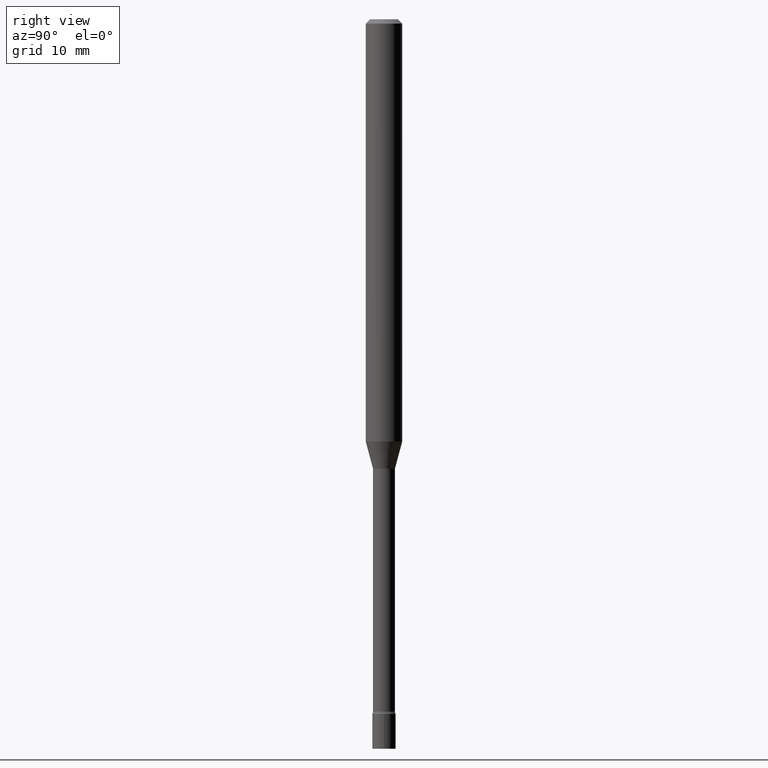
[diagram: clean part render]
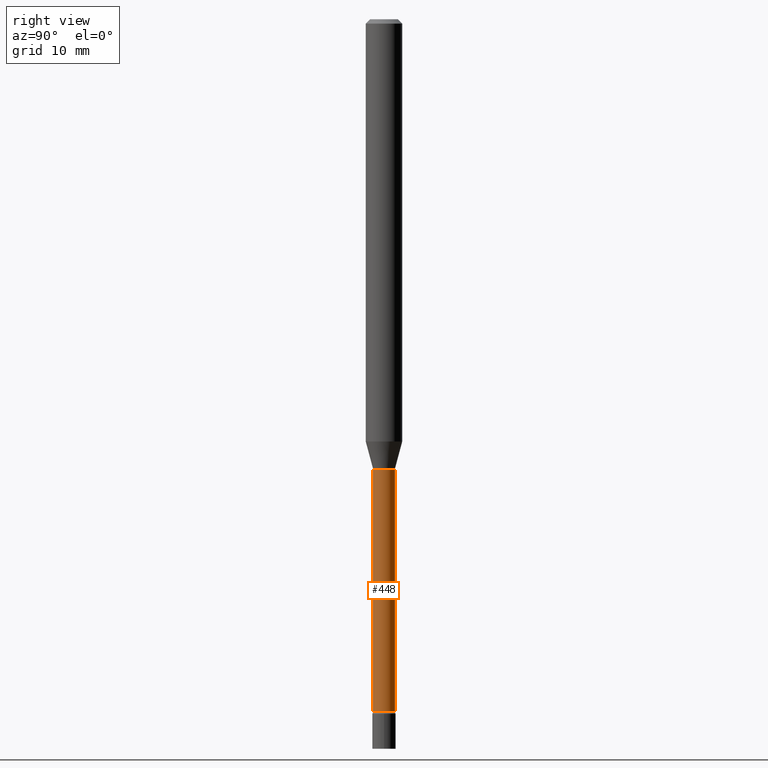
[diagram: same view with one face highlighted and labeled with its STEP entity id]
A machine part, right view. The second image highlights one B-rep face of the part: STEP entity #448.
In plain terms, the highlighted cylindrical surface (edge-blend (fillet) strip) has radius 0.955 mm, axis along (-0, 0, 1).
Its self-contained STEP definition (entity closure, byte-faithful):
#2 = VERTEX_POINT ( 'NONE', #427 ) ;
#6 = LINE ( 'NONE', #289, #125 ) ;
#23 = CARTESIAN_POINT ( 'NONE',  ( -2.625593966810039482E-16, -0.03760000000000005005, 1.312797982603617000E-16 ) ) ;
#26 = ORIENTED_EDGE ( 'NONE', *, *, #431, .F. ) ;
#29 = VERTEX_POINT ( 'NONE', #74 ) ;
#53 = AXIS2_PLACEMENT_3D ( 'NONE', #499, #249, #297 ) ;
#74 = CARTESIAN_POINT ( 'NONE',  ( -2.625593966809462627E-16, -0.03760000000000837672, -2.371861204020250025 ) ) ;
#77 = EDGE_CURVE ( 'NONE', #78, #2, #6, .T. ) ;
#78 = VERTEX_POINT ( 'NONE', #228 ) ;
#85 = VECTOR ( 'NONE', #285, 39.37007874015748143 ) ;
#89 = FACE_OUTER_BOUND ( 'NONE', #420, .T. ) ;
#95 = AXIS2_PLACEMENT_3D ( 'NONE', #375, #121, #459 ) ;
#118 = DIRECTION ( 'NONE',  ( -6.982962677686265922E-15, -1.000000000000000000, 0.000000000000000000 ) ) ;
#121 = DIRECTION ( 'NONE',  ( -2.445466950502562132E-29, 3.491483996286211040E-15, 1.000000000000000000 ) ) ;
#125 = VECTOR ( 'NONE', #241, 39.37007874015748143 ) ;
#157 = CIRCLE ( 'NONE', #519, 0.03760000000000009862 ) ;
#164 = CYLINDRICAL_SURFACE ( 'NONE', #53, 0.03760000000000005005 ) ;
#168 = LINE ( 'NONE', #23, #85 ) ;
#184 = CARTESIAN_POINT ( 'NONE',  ( -2.625593966809658857E-16, -0.03760000000000537912, -1.541974787463811003 ) ) ;
#228 = CARTESIAN_POINT ( 'NONE',  ( 2.756905814749772560E-16, 0.03759999999999182052, -2.371861204020250025 ) ) ;
#233 = ORIENTED_EDGE ( 'NONE', *, *, #77, .T. ) ;
#234 = EDGE_CURVE ( 'NONE', #29, #78, #157, .T. ) ;
#241 = DIRECTION ( 'NONE',  ( -2.445466950502561851E-29, 3.491483996286211435E-15, 1.000000000000000000 ) ) ;
#249 = DIRECTION ( 'NONE',  ( -2.445466950502562132E-29, 3.491483996286211040E-15, 1.000000000000000000 ) ) ;
#252 = CARTESIAN_POINT ( 'NONE',  ( 5.800308185610736390E-29, -8.281315435248845648E-15, -2.371861204020250025 ) ) ;
#278 = EDGE_CURVE ( 'NONE', #481, #2, #336, .T. ) ;
#285 = DIRECTION ( 'NONE',  ( -2.445466950502561851E-29, 3.491483996286211435E-15, 1.000000000000000000 ) ) ;
#289 = CARTESIAN_POINT ( 'NONE',  ( 2.671640686457979762E-16, 0.03760000000000005005, -1.312797982603617000E-16 ) ) ;
#297 = DIRECTION ( 'NONE',  ( -6.982962677686265922E-15, -1.000000000000000000, 3.491483996286210646E-15 ) ) ;
#298 = DIRECTION ( 'NONE',  ( -2.445466950502562132E-29, 3.491483996286211040E-15, 1.000000000000000000 ) ) ;
#336 = CIRCLE ( 'NONE', #95, 0.03759999999999999454 ) ;
#375 = CARTESIAN_POINT ( 'NONE',  ( 3.770848381250961957E-29, -5.383780293106726764E-15, -1.541974787463811003 ) ) ;
#380 = ORIENTED_EDGE ( 'NONE', *, *, #234, .T. ) ;
#404 = ORIENTED_EDGE ( 'NONE', *, *, #278, .F. ) ;
#420 = EDGE_LOOP ( 'NONE', ( #380, #233, #404, #26 ) ) ;
#427 = CARTESIAN_POINT ( 'NONE',  ( 2.671640686458559082E-16, 0.03759999999999461689, -1.541974787463811003 ) ) ;
#431 = EDGE_CURVE ( 'NONE', #29, #481, #168, .T. ) ;
#448 = ADVANCED_FACE ( 'NONE', ( #89 ), #164, .T. ) ;
#459 = DIRECTION ( 'NONE',  ( -6.982962677686265922E-15, -1.000000000000000000, 0.000000000000000000 ) ) ;
#481 = VERTEX_POINT ( 'NONE', #184 ) ;
#499 = CARTESIAN_POINT ( 'NONE',  ( 0.000000000000000000, 0.000000000000000000, 0.000000000000000000 ) ) ;
#519 = AXIS2_PLACEMENT_3D ( 'NONE', #252, #298, #118 ) ;